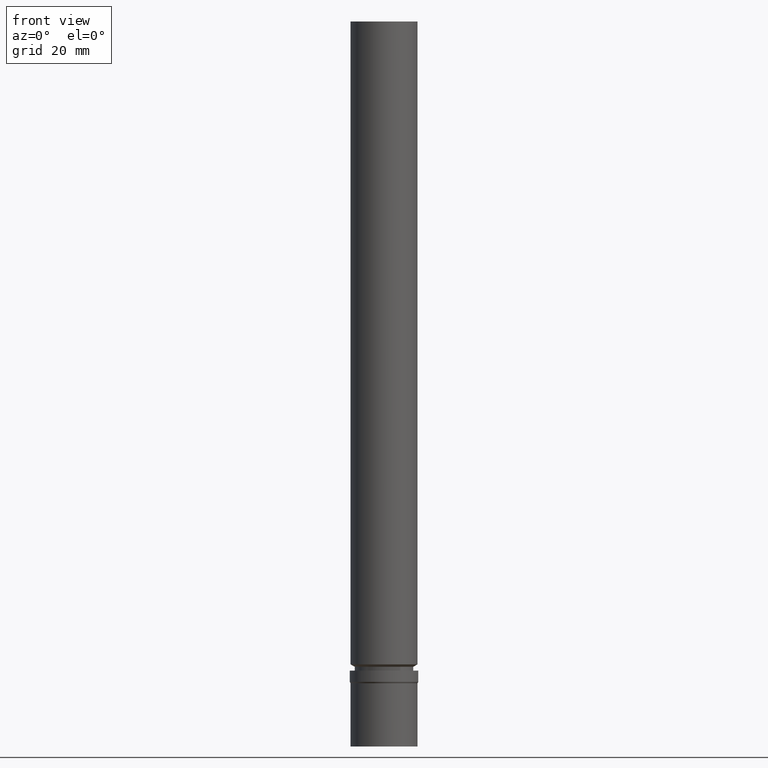
[diagram: clean part render]
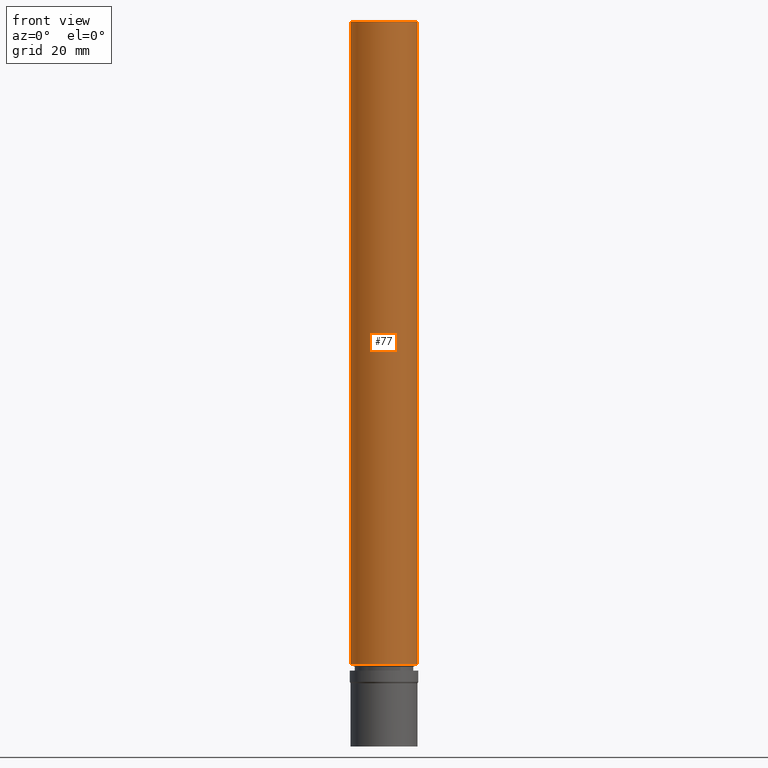
[diagram: same view with one face highlighted and labeled with its STEP entity id]
A machine part, front view. The second image highlights one B-rep face of the part: STEP entity #77.
In plain terms, the highlighted cylindrical surface (bore or boss wall) has radius 6 mm, axis along (-0, -0, 1).
Its self-contained STEP definition (entity closure, byte-faithful):
#77=ADVANCED_FACE('',(#89,#90),#91,.T.);
#89=FACE_BOUND('',#114,.T.);
#90=FACE_BOUND('',#115,.T.);
#91=CYLINDRICAL_SURFACE('',#116,6.0);
#114=EDGE_LOOP('',(#143));
#115=EDGE_LOOP('',(#144));
#116=AXIS2_PLACEMENT_3D('',#145,#146,#147);
#143=ORIENTED_EDGE('',*,*,#180,.F.);
#144=ORIENTED_EDGE('',*,*,#179,.T.);
#145=CARTESIAN_POINT('',(-4.4581113216425E-015,-8.91622264328499E-015,72.8064830569338));
#146=DIRECTION('',(-6.12323399573677E-017,-1.22464679914735E-016,1.0));
#147=DIRECTION('',(-1.23259516440783E-032,1.0,1.22464679914735E-016));
#179=EDGE_CURVE('',#188,#188,#189,.T.);
#180=EDGE_CURVE('',#190,#190,#191,.T.);
#188=VERTEX_POINT('',#204);
#189=CIRCLE('',#205,6.0);
#190=VERTEX_POINT('',#206);
#191=CIRCLE('',#207,6.0);
#204=CARTESIAN_POINT('',(-7.9602041944578E-015,5.99999999999998,130.0));
#205=AXIS2_PLACEMENT_3D('',#221,#222,#223);
#206=CARTESIAN_POINT('',(-9.56018448827197E-016,6.0,15.6129661138675));
#207=AXIS2_PLACEMENT_3D('',#224,#225,#226);
#221=CARTESIAN_POINT('',(-7.9602041944578E-015,-1.59204083889156E-014,130.0));
#222=DIRECTION('',(6.12323399573677E-017,1.22464679914735E-016,-1.0));
#223=DIRECTION('',(-1.23259516440783E-032,1.0,1.22464679914735E-016));
#224=CARTESIAN_POINT('',(-9.56018448827197E-016,-1.91203689765439E-015,15.6129661138675));
#225=DIRECTION('',(6.12323399573677E-017,1.22464679914735E-016,-1.0));
#226=DIRECTION('',(-1.23259516440783E-032,1.0,1.22464679914735E-016));